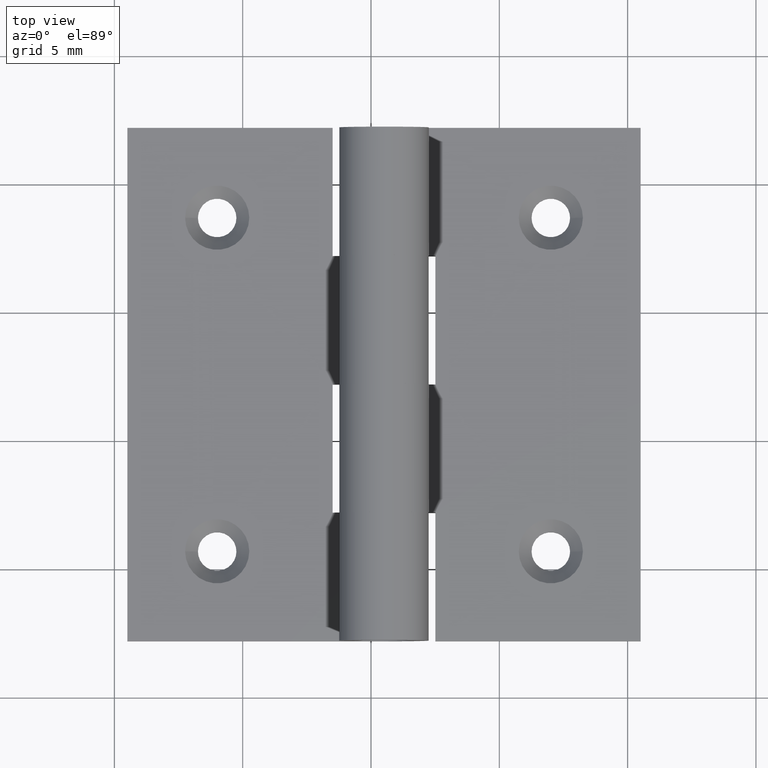
[diagram: clean part render]
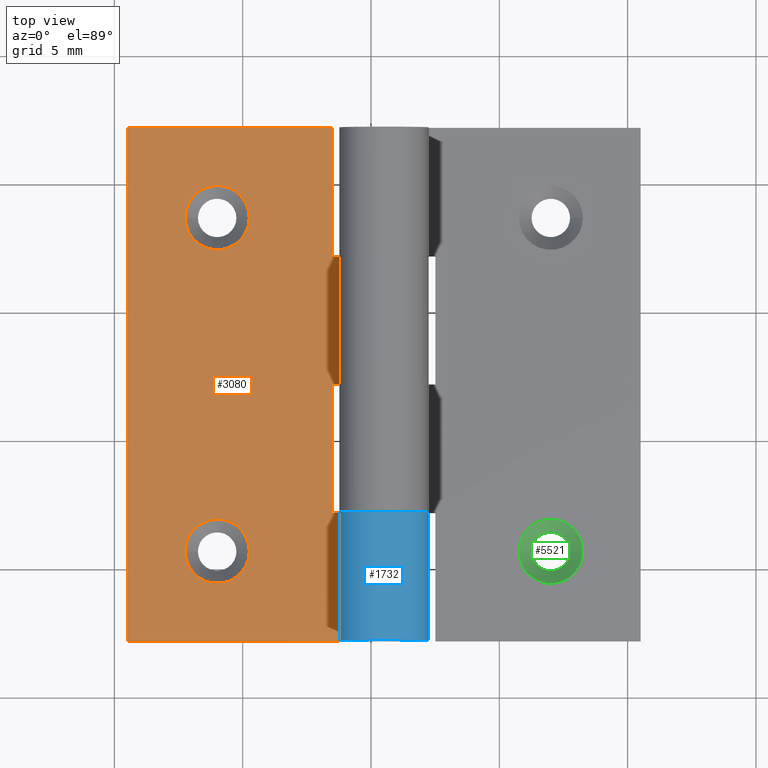
[diagram: same view with three faces highlighted in distinct colors, each labeled with its STEP entity id]
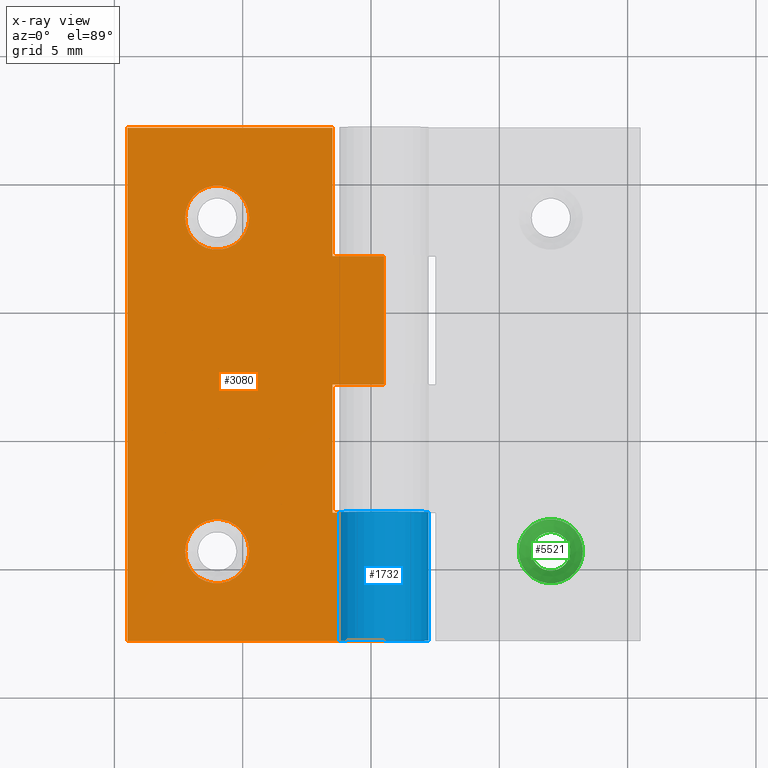
[diagram: x-ray of the same camera — body ghosted, the three highlighted faces saturated]
A machine part, top view with three faces highlighted in distinct colors.
The next image is the same camera in x-ray (body ghosted, the three faces saturated) — at least one of them is partly hidden behind the body in this view.
Their STEP definitions:

[orange] entity #3080 — the highlighted planar face has unit normal (-0, 0, -1).
#110 = CARTESIAN_POINT ( 'NONE',  ( -3.750000000000000444, -5.000000000000000000, 0.7000000000000000666 ) ) ;
#129 = LINE ( 'NONE', #1448, #264 ) ;
#171 = CARTESIAN_POINT ( 'NONE',  ( -1.750000000000000444, 10.00000000000000000, 0.6999999999999998446 ) ) ;
#264 = VECTOR ( 'NONE', #8964, 1000.000000000000000 ) ;
#335 = CARTESIAN_POINT ( 'NONE',  ( -9.500000000000010658, -6.500000000000000888, 0.7000000000000007327 ) ) ;
#416 = EDGE_CURVE ( 'NONE', #4023, #9944, #2092, .T. ) ;
#466 = CARTESIAN_POINT ( 'NONE',  ( -3.750000000000000000, 9.999999999999998224, 0.7000000000000005107 ) ) ;
#539 = ORIENTED_EDGE ( 'NONE', *, *, #8192, .T. ) ;
#745 = DIRECTION ( 'NONE',  ( -1.000000000000000000, 0.000000000000000000, 1.192622389734054877E-16 ) ) ;
#814 = CARTESIAN_POINT ( 'NONE',  ( -1.750000000000000444, 5.000000000000000888, 0.6999999999999998446 ) ) ;
#886 = CARTESIAN_POINT ( 'NONE',  ( -1.750000000000000444, 10.00000000000000000, 0.6999999999999998446 ) ) ;
#965 = VERTEX_POINT ( 'NONE', #2614 ) ;
#978 = VERTEX_POINT ( 'NONE', #1235 ) ;
#1113 = ORIENTED_EDGE ( 'NONE', *, *, #4814, .T. ) ;
#1115 = VECTOR ( 'NONE', #6808, 1000.000000000000000 ) ;
#1195 = EDGE_CURVE ( 'NONE', #978, #978, #9570, .T. ) ;
#1226 = PLANE ( 'NONE',  #1702 ) ;
#1235 = CARTESIAN_POINT ( 'NONE',  ( -9.500000000000012434, 6.499999999999999112, 0.7000000000000007327 ) ) ;
#1365 = DIRECTION ( 'NONE',  ( 1.000000000000000000, -0.000000000000000000, -1.192622389734054877E-16 ) ) ;
#1436 = ORIENTED_EDGE ( 'NONE', *, *, #416, .T. ) ;
#1448 = CARTESIAN_POINT ( 'NONE',  ( -11.75000000000000000, 10.00000000000000000, 0.7000000000000010658 ) ) ;
#1485 = CARTESIAN_POINT ( 'NONE',  ( -1.750000000000000444, 10.00000000000000000, 0.6999999999999998446 ) ) ;
#1525 = LINE ( 'NONE', #171, #3836 ) ;
#1537 = ORIENTED_EDGE ( 'NONE', *, *, #6948, .F. ) ;
#1657 = ORIENTED_EDGE ( 'NONE', *, *, #2115, .T. ) ;
#1697 = LINE ( 'NONE', #5408, #8002 ) ;
#1702 = AXIS2_PLACEMENT_3D ( 'NONE', #7848, #4577, #8895 ) ;
#1824 = EDGE_CURVE ( 'NONE', #2898, #5403, #129, .T. ) ;
#1939 = VERTEX_POINT ( 'NONE', #110 ) ;
#1972 = DIRECTION ( 'NONE',  ( -1.000000000000000000, 0.000000000000000000, 8.673617379883980005E-17 ) ) ;
#2005 = LINE ( 'NONE', #9479, #5103 ) ;
#2092 = LINE ( 'NONE', #3351, #9851 ) ;
#2115 = EDGE_CURVE ( 'NONE', #965, #2131, #1697, .T. ) ;
#2131 = VERTEX_POINT ( 'NONE', #7995 ) ;
#2362 = CARTESIAN_POINT ( 'NONE',  ( -1.750000000000000222, 5.000000000000000888, 0.7000000000000002887 ) ) ;
#2431 = CARTESIAN_POINT ( 'NONE',  ( -1.750000000000000444, -10.00000000000000000, 0.6999999999999998446 ) ) ;
#2614 = CARTESIAN_POINT ( 'NONE',  ( -3.750000000000000000, 8.673617379884035472E-16, 0.7000000000000000666 ) ) ;
#2747 = ORIENTED_EDGE ( 'NONE', *, *, #1195, .T. ) ;
#2756 = DIRECTION ( 'NONE',  ( 8.673617379884034239E-17, 1.000000000000000000, -1.034435028723612870E-32 ) ) ;
#2793 = CARTESIAN_POINT ( 'NONE',  ( -1.750000000000000444, -5.000000000000000888, 0.7000000000000002887 ) ) ;
#2898 = VERTEX_POINT ( 'NONE', #8447 ) ;
#3067 = VERTEX_POINT ( 'NONE', #335 ) ;
#3080 = ADVANCED_FACE ( 'NONE', ( #5412, #6841, #8247 ), #1226, .F. ) ;
#3351 = CARTESIAN_POINT ( 'NONE',  ( -3.750000000000000000, 10.00000000000000000, 0.7000000000000000666 ) ) ;
#3556 = LINE ( 'NONE', #886, #8324 ) ;
#3574 = LINE ( 'NONE', #7589, #1115 ) ;
#3671 = CARTESIAN_POINT ( 'NONE',  ( -8.250000000000001776, -6.500000000000000888, 0.7000000000000006217 ) ) ;
#3836 = VECTOR ( 'NONE', #5084, 1000.000000000000000 ) ;
#4023 = VERTEX_POINT ( 'NONE', #7256 ) ;
#4294 = EDGE_CURVE ( 'NONE', #6281, #2131, #1525, .T. ) ;
#4577 = DIRECTION ( 'NONE',  ( -1.192622389734054877E-16, 0.000000000000000000, -1.000000000000000000 ) ) ;
#4596 = ORIENTED_EDGE ( 'NONE', *, *, #6651, .F. ) ;
#4741 = ORIENTED_EDGE ( 'NONE', *, *, #7540, .T. ) ;
#4814 = EDGE_CURVE ( 'NONE', #5403, #10177, #3574, .T. ) ;
#4847 = EDGE_CURVE ( 'NONE', #9566, #1939, #4995, .T. ) ;
#4995 = LINE ( 'NONE', #6742, #6936 ) ;
#5084 = DIRECTION ( 'NONE',  ( -0.000000000000000000, -1.000000000000000000, -0.000000000000000000 ) ) ;
#5103 = VECTOR ( 'NONE', #2756, 1000.000000000000000 ) ;
#5226 = VECTOR ( 'NONE', #745, 1000.000000000000000 ) ;
#5250 = DIRECTION ( 'NONE',  ( -1.192622389734054877E-16, 0.000000000000000000, -1.000000000000000000 ) ) ;
#5403 = VERTEX_POINT ( 'NONE', #8069 ) ;
#5408 = CARTESIAN_POINT ( 'NONE',  ( -1.750000000000000444, 1.734723475976807094E-15, 0.6999999999999998446 ) ) ;
#5412 = FACE_BOUND ( 'NONE', #6137, .T. ) ;
#5629 = LINE ( 'NONE', #1485, #8856 ) ;
#6137 = EDGE_LOOP ( 'NONE', ( #539 ) ) ;
#6281 = VERTEX_POINT ( 'NONE', #2362 ) ;
#6438 = EDGE_LOOP ( 'NONE', ( #4741, #1657, #10657, #8502, #1436, #4596, #8649, #1113, #1537, #9328 ) ) ;
#6651 = EDGE_CURVE ( 'NONE', #2898, #9944, #5629, .T. ) ;
#6740 = AXIS2_PLACEMENT_3D ( 'NONE', #7724, #5250, #6911 ) ;
#6742 = CARTESIAN_POINT ( 'NONE',  ( -1.749999999999998224, -5.000000000000000888, 0.6999999999999998446 ) ) ;
#6785 = DIRECTION ( 'NONE',  ( -0.000000000000000000, -1.000000000000000000, -0.000000000000000000 ) ) ;
#6808 = DIRECTION ( 'NONE',  ( 1.000000000000000000, -0.000000000000000000, -1.192622389734054877E-16 ) ) ;
#6841 = FACE_BOUND ( 'NONE', #7549, .T. ) ;
#6911 = DIRECTION ( 'NONE',  ( -1.000000000000000000, 0.000000000000000000, 8.673617379883980005E-17 ) ) ;
#6936 = VECTOR ( 'NONE', #9309, 1000.000000000000000 ) ;
#6948 = EDGE_CURVE ( 'NONE', #9566, #10177, #3556, .T. ) ;
#7019 = CIRCLE ( 'NONE', #7577, 1.250000000000007994 ) ;
#7256 = CARTESIAN_POINT ( 'NONE',  ( -3.750000000000000000, 5.000000000000000888, 0.7000000000000000666 ) ) ;
#7258 = DIRECTION ( 'NONE',  ( 1.000000000000000000, -0.000000000000000000, -1.192622389734054877E-16 ) ) ;
#7349 = EDGE_CURVE ( 'NONE', #6281, #4023, #7418, .T. ) ;
#7418 = LINE ( 'NONE', #814, #5226 ) ;
#7540 = EDGE_CURVE ( 'NONE', #1939, #965, #2005, .T. ) ;
#7549 = EDGE_LOOP ( 'NONE', ( #2747 ) ) ;
#7577 = AXIS2_PLACEMENT_3D ( 'NONE', #3671, #10298, #1972 ) ;
#7589 = CARTESIAN_POINT ( 'NONE',  ( -1.750000000000000444, -10.00000000000000000, 0.6999999999999998446 ) ) ;
#7724 = CARTESIAN_POINT ( 'NONE',  ( -8.250000000000003553, 6.499999999999999112, 0.7000000000000006217 ) ) ;
#7848 = CARTESIAN_POINT ( 'NONE',  ( -1.750000000000000444, 10.00000000000000000, 0.6999999999999998446 ) ) ;
#7995 = CARTESIAN_POINT ( 'NONE',  ( -1.750000000000000444, 1.734723475976807094E-15, 0.7000000000000002887 ) ) ;
#8002 = VECTOR ( 'NONE', #1365, 1000.000000000000000 ) ;
#8069 = CARTESIAN_POINT ( 'NONE',  ( -11.75000000000000000, -10.00000000000000000, 0.7000000000000010658 ) ) ;
#8192 = EDGE_CURVE ( 'NONE', #3067, #3067, #7019, .T. ) ;
#8247 = FACE_OUTER_BOUND ( 'NONE', #6438, .T. ) ;
#8324 = VECTOR ( 'NONE', #6785, 1000.000000000000000 ) ;
#8447 = CARTESIAN_POINT ( 'NONE',  ( -11.75000000000000000, 10.00000000000000000, 0.7000000000000010658 ) ) ;
#8502 = ORIENTED_EDGE ( 'NONE', *, *, #7349, .T. ) ;
#8649 = ORIENTED_EDGE ( 'NONE', *, *, #1824, .T. ) ;
#8856 = VECTOR ( 'NONE', #7258, 1000.000000000000000 ) ;
#8895 = DIRECTION ( 'NONE',  ( -1.000000000000000000, 0.000000000000000000, 1.192622389734054877E-16 ) ) ;
#8964 = DIRECTION ( 'NONE',  ( -0.000000000000000000, -1.000000000000000000, -0.000000000000000000 ) ) ;
#9205 = DIRECTION ( 'NONE',  ( 0.000000000000000000, 1.000000000000000000, 0.000000000000000000 ) ) ;
#9309 = DIRECTION ( 'NONE',  ( -1.000000000000000000, -1.470104640658311001E-16, 1.192622389734054877E-16 ) ) ;
#9328 = ORIENTED_EDGE ( 'NONE', *, *, #4847, .T. ) ;
#9479 = CARTESIAN_POINT ( 'NONE',  ( -3.749999999999999112, 10.00000000000000000, 0.7000000000000000666 ) ) ;
#9566 = VERTEX_POINT ( 'NONE', #2793 ) ;
#9570 = CIRCLE ( 'NONE', #6740, 1.250000000000007994 ) ;
#9851 = VECTOR ( 'NONE', #9205, 1000.000000000000000 ) ;
#9944 = VERTEX_POINT ( 'NONE', #466 ) ;
#10177 = VERTEX_POINT ( 'NONE', #2431 ) ;
#10298 = DIRECTION ( 'NONE',  ( -1.192622389734054877E-16, 0.000000000000000000, -1.000000000000000000 ) ) ;
#10657 = ORIENTED_EDGE ( 'NONE', *, *, #4294, .F. ) ;

[blue] entity #1732 — the highlighted cylindrical surface (partial cylindrical patch) has radius 1.75 mm, axis along (-0, -1, -0).
#422 = CARTESIAN_POINT ( 'NONE',  ( -1.750000000000000444, -10.00000000000000000, -1.084202172485504434E-16 ) ) ;
#514 = FACE_OUTER_BOUND ( 'NONE', #949, .T. ) ;
#537 = VERTEX_POINT ( 'NONE', #3526 ) ;
#949 = EDGE_LOOP ( 'NONE', ( #8854, #8359, #10244, #8897 ) ) ;
#1265 = VECTOR ( 'NONE', #8553, 1000.000000000000000 ) ;
#1449 = CARTESIAN_POINT ( 'NONE',  ( -1.750000000000000222, -5.000000000000000888, 1.750000000000000666 ) ) ;
#1732 = ADVANCED_FACE ( 'NONE', ( #514 ), #3994, .T. ) ;
#1967 = DIRECTION ( 'NONE',  ( -0.000000000000000000, -1.000000000000000000, -0.000000000000000000 ) ) ;
#2357 = EDGE_CURVE ( 'NONE', #3335, #6658, #3604, .T. ) ;
#2414 = DIRECTION ( 'NONE',  ( 0.000000000000000000, 1.000000000000000000, -0.000000000000000000 ) ) ;
#2702 = CARTESIAN_POINT ( 'NONE',  ( -3.219693845669907351, -5.000000000000000888, 0.8000000000000001554 ) ) ;
#3335 = VERTEX_POINT ( 'NONE', #4312 ) ;
#3469 = LINE ( 'NONE', #7612, #3595 ) ;
#3526 = CARTESIAN_POINT ( 'NONE',  ( -1.749999999999999778, -5.000000000000000000, 2.276824562219558818E-16 ) ) ;
#3549 = AXIS2_PLACEMENT_3D ( 'NONE', #1449, #6475, #7145 ) ;
#3595 = VECTOR ( 'NONE', #1967, 1000.000000000000000 ) ;
#3604 = CIRCLE ( 'NONE', #6119, 1.750000000000000666 ) ;
#3787 = EDGE_CURVE ( 'NONE', #537, #6658, #3469, .T. ) ;
#3899 = EDGE_CURVE ( 'NONE', #10435, #3335, #7590, .T. ) ;
#3994 = CYLINDRICAL_SURFACE ( 'NONE', #4725, 1.750000000000000666 ) ;
#4003 = EDGE_CURVE ( 'NONE', #537, #10435, #4621, .T. ) ;
#4312 = CARTESIAN_POINT ( 'NONE',  ( -3.219693845669907351, -10.00000000000000000, 0.8000000000000003775 ) ) ;
#4466 = DIRECTION ( 'NONE',  ( 0.000000000000000000, 0.000000000000000000, -1.000000000000000000 ) ) ;
#4621 = CIRCLE ( 'NONE', #3549, 1.750000000000000666 ) ;
#4725 = AXIS2_PLACEMENT_3D ( 'NONE', #5338, #9432, #4466 ) ;
#4861 = DIRECTION ( 'NONE',  ( 0.000000000000000000, 0.000000000000000000, -1.000000000000000000 ) ) ;
#5338 = CARTESIAN_POINT ( 'NONE',  ( -1.750000000000000222, 10.00000000000000000, 1.750000000000000666 ) ) ;
#5631 = CARTESIAN_POINT ( 'NONE',  ( -1.750000000000000222, -10.00000000000000000, 1.750000000000000666 ) ) ;
#6119 = AXIS2_PLACEMENT_3D ( 'NONE', #5631, #2414, #4861 ) ;
#6475 = DIRECTION ( 'NONE',  ( 1.470104640658311001E-16, -1.000000000000000000, -1.912668774219315309E-32 ) ) ;
#6658 = VERTEX_POINT ( 'NONE', #422 ) ;
#7145 = DIRECTION ( 'NONE',  ( 1.000000000000000000, 0.000000000000000000, 0.000000000000000000 ) ) ;
#7590 = LINE ( 'NONE', #9255, #1265 ) ;
#7612 = CARTESIAN_POINT ( 'NONE',  ( -1.750000000000000444, 10.00000000000000000, -1.084202172485504434E-16 ) ) ;
#8359 = ORIENTED_EDGE ( 'NONE', *, *, #3899, .T. ) ;
#8553 = DIRECTION ( 'NONE',  ( -0.000000000000000000, -1.000000000000000000, -0.000000000000000000 ) ) ;
#8854 = ORIENTED_EDGE ( 'NONE', *, *, #4003, .T. ) ;
#8897 = ORIENTED_EDGE ( 'NONE', *, *, #3787, .F. ) ;
#9255 = CARTESIAN_POINT ( 'NONE',  ( -3.219693845669907351, 10.00000000000000000, 0.8000000000000003775 ) ) ;
#9432 = DIRECTION ( 'NONE',  ( -0.000000000000000000, -1.000000000000000000, -0.000000000000000000 ) ) ;
#10244 = ORIENTED_EDGE ( 'NONE', *, *, #2357, .T. ) ;
#10435 = VERTEX_POINT ( 'NONE', #2702 ) ;

[green] entity #5521 — the highlighted conical surface has half-angle 45 deg.
#227 = EDGE_CURVE ( 'NONE', #8610, #8610, #3386, .T. ) ;
#528 = CARTESIAN_POINT ( 'NONE',  ( -8.250000000000003553, 6.499999999999999112, 0.1999999999999969857 ) ) ;
#599 = DIRECTION ( 'NONE',  ( 0.000000000000000000, 0.000000000000000000, 1.000000000000000000 ) ) ;
#602 = DIRECTION ( 'NONE',  ( 0.000000000000000000, 0.000000000000000000, 1.000000000000000000 ) ) ;
#611 = CIRCLE ( 'NONE', #1216, 1.250000000000007994 ) ;
#1062 = AXIS2_PLACEMENT_3D ( 'NONE', #3140, #602, #3808 ) ;
#1216 = AXIS2_PLACEMENT_3D ( 'NONE', #10214, #8646, #5263 ) ;
#1368 = DIRECTION ( 'NONE',  ( -1.000000000000000000, 0.000000000000000000, 0.000000000000000000 ) ) ;
#3090 = EDGE_LOOP ( 'NONE', ( #9518 ) ) ;
#3140 = CARTESIAN_POINT ( 'NONE',  ( -8.250000000000003553, 6.499999999999999112, 0.1999999999999969857 ) ) ;
#3386 = CIRCLE ( 'NONE', #8031, 0.7500000000000006661 ) ;
#3394 = ORIENTED_EDGE ( 'NONE', *, *, #227, .F. ) ;
#3808 = DIRECTION ( 'NONE',  ( 1.000000000000000000, 0.000000000000000000, 0.000000000000000000 ) ) ;
#4203 = CONICAL_SURFACE ( 'NONE', #1062, 0.7500000000000006661, 0.7853981633974523868 ) ;
#4867 = VERTEX_POINT ( 'NONE', #6194 ) ;
#5263 = DIRECTION ( 'NONE',  ( -1.000000000000000000, 0.000000000000000000, 8.673617379883980005E-17 ) ) ;
#5521 = ADVANCED_FACE ( 'NONE', ( #9920, #8467 ), #4203, .F. ) ;
#6194 = CARTESIAN_POINT ( 'NONE',  ( -9.500000000000012434, 6.499999999999999112, 0.7000000000000007327 ) ) ;
#8031 = AXIS2_PLACEMENT_3D ( 'NONE', #528, #599, #1368 ) ;
#8467 = FACE_BOUND ( 'NONE', #10713, .T. ) ;
#8610 = VERTEX_POINT ( 'NONE', #10306 ) ;
#8646 = DIRECTION ( 'NONE',  ( -1.192622389734054877E-16, 0.000000000000000000, -1.000000000000000000 ) ) ;
#9512 = EDGE_CURVE ( 'NONE', #4867, #4867, #611, .T. ) ;
#9518 = ORIENTED_EDGE ( 'NONE', *, *, #9512, .F. ) ;
#9920 = FACE_OUTER_BOUND ( 'NONE', #3090, .T. ) ;
#10214 = CARTESIAN_POINT ( 'NONE',  ( -8.250000000000003553, 6.499999999999999112, 0.7000000000000006217 ) ) ;
#10306 = CARTESIAN_POINT ( 'NONE',  ( -9.000000000000005329, 6.499999999999999112, 0.1999999999999969857 ) ) ;
#10713 = EDGE_LOOP ( 'NONE', ( #3394 ) ) ;